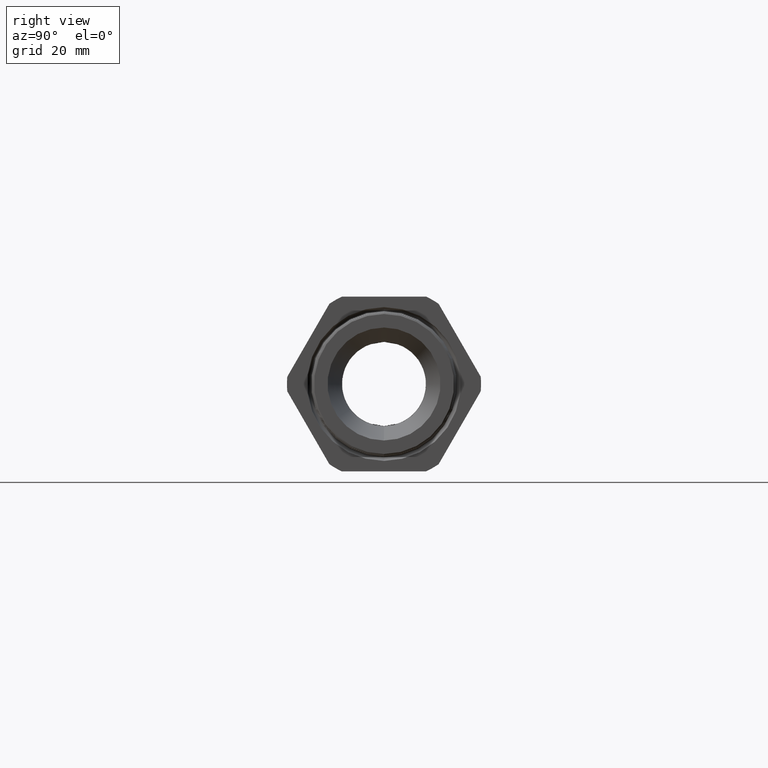
[diagram: clean part render]
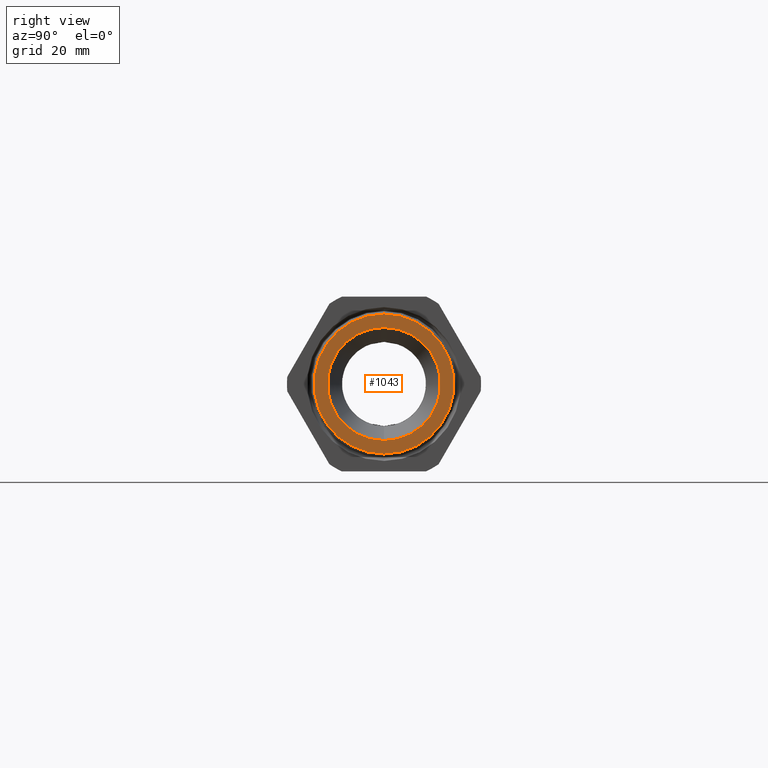
[diagram: same view with one face highlighted and labeled with its STEP entity id]
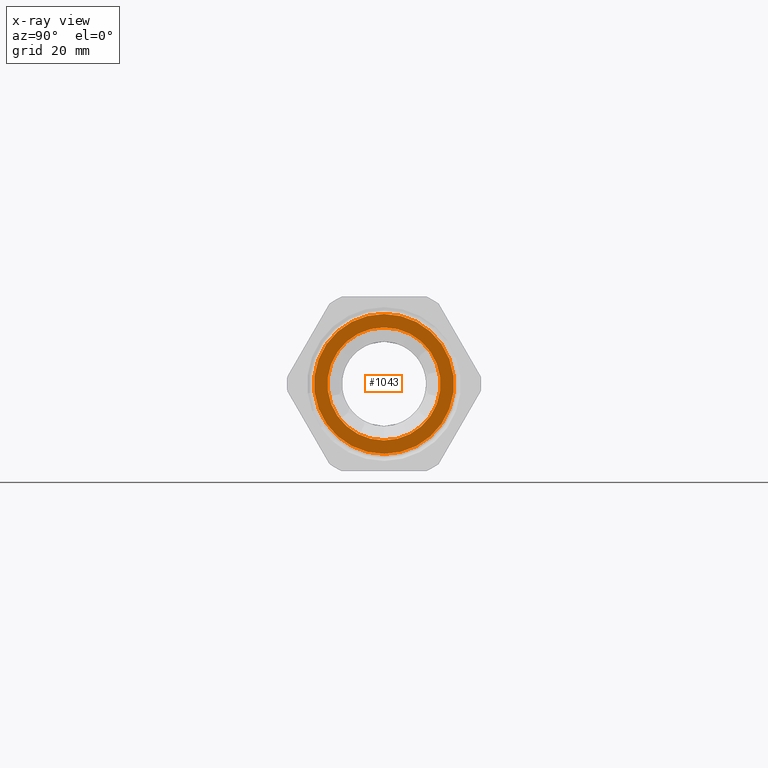
[diagram: x-ray of the same camera — body ghosted, the highlighted face saturated]
A machine part, right view. The second image highlights one B-rep face of the part: STEP entity #1043.
The next image is the same camera in x-ray: the body ghosted, the highlighted face saturated — about 0% of this face is hidden behind the body in this view.
In plain terms, the highlighted planar face has unit normal (1, 0, 0).
Its self-contained STEP definition (entity closure, byte-faithful):
#556 = DIRECTION ( 'NONE',  ( 0.0000000000000000000, 0.0000000000000000000, -1.000000000000000000 ) ) ;
#557 = DIRECTION ( 'NONE',  ( 1.000000000000000000, 0.0000000000000000000, 0.0000000000000000000 ) ) ;
#558 = CARTESIAN_POINT ( 'NONE',  ( 0.2800000000000000300, 0.4200000000000000400, 0.0000000000000000000 ) ) ;
#559 = AXIS2_PLACEMENT_3D ( 'NONE', #558, #557, #556 ) ;
#560 = PLANE ( 'NONE',  #559 ) ;
#561 = FACE_BOUND ( 'NONE', #21483, .T. ) ;
#562 = FACE_OUTER_BOUND ( 'NONE', #622, .T. ) ;
#563 = DIRECTION ( 'NONE',  ( 0.0000000000000000000, 0.0000000000000000000, -1.000000000000000000 ) ) ;
#564 = DIRECTION ( 'NONE',  ( 1.000000000000000000, 0.0000000000000000000, 0.0000000000000000000 ) ) ;
#565 = CARTESIAN_POINT ( 'NONE',  ( 0.2800000000000000300, 0.0000000000000000000, 0.0000000000000000000 ) ) ;
#566 = AXIS2_PLACEMENT_3D ( 'NONE', #565, #564, #563 ) ;
#567 = CIRCLE ( 'NONE', #566, 0.4200000000000000400 ) ;
#622 = EDGE_LOOP ( 'NONE', ( #21513, #21515 ) ) ;
#680 = CARTESIAN_POINT ( 'NONE',  ( 0.2800000000000000300, 6.370762841825538000E-017, 0.5202122641614800300 ) ) ;
#928 = EDGE_CURVE ( 'NONE', #17586, #17453, #567, .T. ) ;
#1043 = ADVANCED_FACE ( 'NONE', ( #562, #561 ), #560, .T. ) ;
#1254 = DIRECTION ( 'NONE',  ( 0.0000000000000000000, 0.0000000000000000000, -1.000000000000000000 ) ) ;
#1256 = DIRECTION ( 'NONE',  ( -1.000000000000000000, 0.0000000000000000000, 0.0000000000000000000 ) ) ;
#1257 = CARTESIAN_POINT ( 'NONE',  ( 0.2800000000000000300, 0.0000000000000000000, 0.0000000000000000000 ) ) ;
#1258 = AXIS2_PLACEMENT_3D ( 'NONE', #1257, #1256, #1254 ) ;
#1259 = CIRCLE ( 'NONE', #1258, 0.5202122641614799200 ) ;
#1262 = CARTESIAN_POINT ( 'NONE',  ( 0.2800000000000000300, 0.0000000000000000000, -0.5202122641614800300 ) ) ;
#2608 = VERTEX_POINT ( 'NONE', #680 ) ;
#3536 = VERTEX_POINT ( 'NONE', #1262 ) ;
#3537 = EDGE_CURVE ( 'NONE', #2608, #3536, #1259, .T. ) ;
#3584 = ORIENTED_EDGE ( 'NONE', *, *, #17590, .F. ) ;
#6186 = CARTESIAN_POINT ( 'NONE',  ( 0.2800000000000000300, 5.143516556418884400E-017, 0.4200000000000000400 ) ) ;
#6279 = DIRECTION ( 'NONE',  ( 0.0000000000000000000, 0.0000000000000000000, -1.000000000000000000 ) ) ;
#6280 = DIRECTION ( 'NONE',  ( 1.000000000000000000, 0.0000000000000000000, 0.0000000000000000000 ) ) ;
#6281 = AXIS2_PLACEMENT_3D ( 'NONE', #6288, #6280, #6279 ) ;
#6282 = CIRCLE ( 'NONE', #6281, 0.4200000000000000400 ) ;
#6288 = CARTESIAN_POINT ( 'NONE',  ( 0.2800000000000000300, 0.0000000000000000000, 0.0000000000000000000 ) ) ;
#6294 = CARTESIAN_POINT ( 'NONE',  ( 0.2800000000000000300, 0.0000000000000000000, -0.4200000000000000400 ) ) ;
#17453 = VERTEX_POINT ( 'NONE', #6186 ) ;
#17586 = VERTEX_POINT ( 'NONE', #6294 ) ;
#17590 = EDGE_CURVE ( 'NONE', #17453, #17586, #6282, .T. ) ;
#19130 = DIRECTION ( 'NONE',  ( 0.0000000000000000000, 0.0000000000000000000, -1.000000000000000000 ) ) ;
#19131 = DIRECTION ( 'NONE',  ( -1.000000000000000000, 0.0000000000000000000, 0.0000000000000000000 ) ) ;
#19132 = CARTESIAN_POINT ( 'NONE',  ( 0.2800000000000000300, 0.0000000000000000000, 0.0000000000000000000 ) ) ;
#19133 = AXIS2_PLACEMENT_3D ( 'NONE', #19132, #19131, #19130 ) ;
#19134 = CIRCLE ( 'NONE', #19133, 0.5202122641614799200 ) ;
#21483 = EDGE_LOOP ( 'NONE', ( #21508, #3584 ) ) ;
#21508 = ORIENTED_EDGE ( 'NONE', *, *, #928, .F. ) ;
#21513 = ORIENTED_EDGE ( 'NONE', *, *, #21516, .F. ) ;
#21515 = ORIENTED_EDGE ( 'NONE', *, *, #3537, .F. ) ;
#21516 = EDGE_CURVE ( 'NONE', #3536, #2608, #19134, .T. ) ;